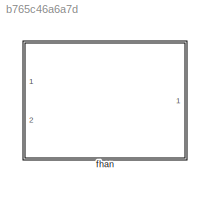
MODEL slx_b765c46a6a7d
KIND library
CONFIG AbsTol = auto
CONFIG EnableMultiTasking = off
CONFIG FixedStep = auto
CONFIG MaxStep = auto
CONFIG MinStep = auto
CONFIG RelTol = 1e-3
CONFIG SampleTimeConstraint = Unconstrained
CONFIG Solver = VariableStepAuto
CONFIG SolverName = VariableStepAuto
CONFIG StartTime = 0.0
CONFIG StopTime = 10.0
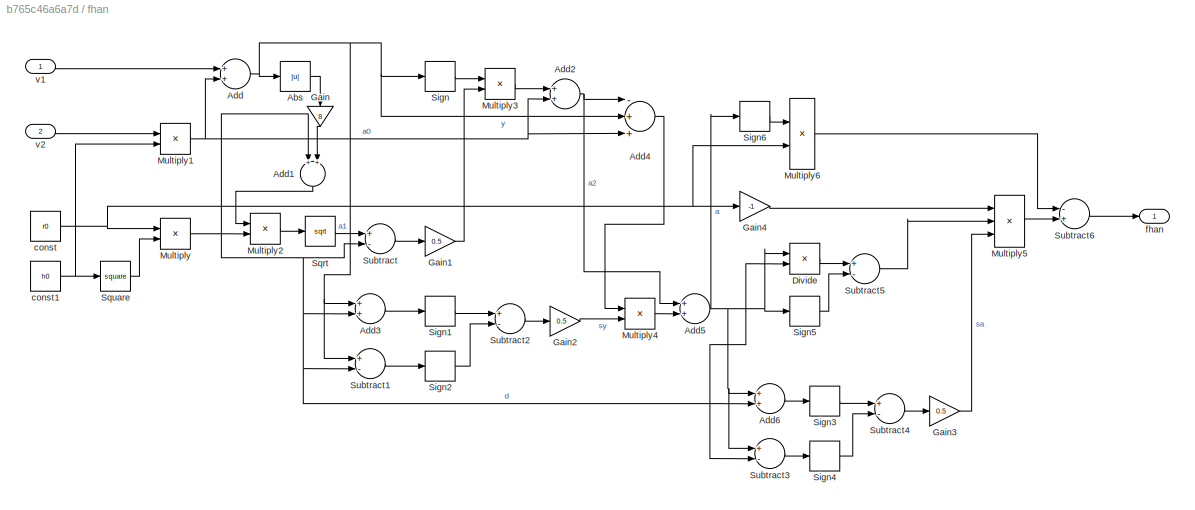
BLOCK [SubSystem] fhan
  Ports = [2, 1]
  RequestExecContextInheritance = off
BLOCK [Abs] fhan/Abs
  SaturateOnIntegerOverflow = off
BLOCK [Sum] fhan/Add
  InputSameDT = off
  Ports = [2, 1]
  SaturateOnIntegerOverflow = off
BLOCK [Sum] fhan/Add1
  InputSameDT = off
  Ports = [2, 1]
  SaturateOnIntegerOverflow = off
BLOCK [Sum] fhan/Add2
  InputSameDT = off
  Ports = [2, 1]
  SaturateOnIntegerOverflow = off
BLOCK [Sum] fhan/Add3
  InputSameDT = off
  Ports = [2, 1]
  SaturateOnIntegerOverflow = off
BLOCK [Sum] fhan/Add4
  InputSameDT = off
  Inputs = -++
  OutDataTypeStr = Inherit: Inherit via internal rule
  Ports = [3, 1]
  SaturateOnIntegerOverflow = off
BLOCK [Sum] fhan/Add5
  InputSameDT = off
  Ports = [2, 1]
  SaturateOnIntegerOverflow = off
BLOCK [Sum] fhan/Add6
  InputSameDT = off
  Ports = [2, 1]
  SaturateOnIntegerOverflow = off
BLOCK [Product] fhan/Divide
  InputSameDT = off
  Inputs = */
  OutDataTypeStr = Inherit: Inherit via internal rule
  Ports = [2, 1]
  RndMeth = Floor
  SaturateOnIntegerOverflow = off
BLOCK [Gain] fhan/Gain
  Gain = 8
  OutDataTypeStr = Inherit: Inherit via internal rule
  ParamDataTypeStr = Inherit: Inherit via internal rule
  SaturateOnIntegerOverflow = off
BLOCK [Gain] fhan/Gain1
  Gain = 0.5
  ParamDataTypeStr = Inherit: Inherit via internal rule
  SaturateOnIntegerOverflow = off
BLOCK [Gain] fhan/Gain2
  Gain = 0.5
  ParamDataTypeStr = Inherit: Inherit via internal rule
  SaturateOnIntegerOverflow = off
BLOCK [Gain] fhan/Gain3
  Gain = 0.5
  ParamDataTypeStr = Inherit: Inherit via internal rule
  SaturateOnIntegerOverflow = off
BLOCK [Gain] fhan/Gain4
  Gain = -1
  ParamDataTypeStr = Inherit: Inherit via internal rule
  SaturateOnIntegerOverflow = off
BLOCK [Product] fhan/Multiply
  InputSameDT = off
  Ports = [2, 1]
  RndMeth = Floor
  SaturateOnIntegerOverflow = off
BLOCK [Product] fhan/Multiply1
  InputSameDT = off
  Ports = [2, 1]
  RndMeth = Floor
  SaturateOnIntegerOverflow = off
BLOCK [Product] fhan/Multiply2
  InputSameDT = off
  Ports = [2, 1]
  RndMeth = Floor
  SaturateOnIntegerOverflow = off
BLOCK [Product] fhan/Multiply3
  InputSameDT = off
  Ports = [2, 1]
  RndMeth = Floor
  SaturateOnIntegerOverflow = off
BLOCK [Product] fhan/Multiply4
  InputSameDT = off
  OutDataTypeStr = single
  Ports = [2, 1]
  RndMeth = Floor
  SaturateOnIntegerOverflow = off
BLOCK [Product] fhan/Multiply5
  InputSameDT = off
  Inputs = 3
  OutDataTypeStr = Inherit: Inherit via internal rule
  Ports = [3, 1]
  RndMeth = Floor
  SaturateOnIntegerOverflow = off
BLOCK [Product] fhan/Multiply6
  InputSameDT = off
  OutDataTypeStr = single
  Ports = [2, 1]
  RndMeth = Floor
  SaturateOnIntegerOverflow = off
BLOCK [Signum] fhan/Sign
BLOCK [Signum] fhan/Sign1
BLOCK [Signum] fhan/Sign2
BLOCK [Signum] fhan/Sign3
BLOCK [Signum] fhan/Sign4
BLOCK [Signum] fhan/Sign5
BLOCK [Signum] fhan/Sign6
BLOCK [Sqrt] fhan/Sqrt
BLOCK [Math] fhan/Square
  Operator = square
  Ports = [1, 1]
BLOCK [Sum] fhan/Subtract
  InputSameDT = off
  Inputs = +-
  Ports = [2, 1]
  SaturateOnIntegerOverflow = off
BLOCK [Sum] fhan/Subtract1
  InputSameDT = off
  Inputs = +-
  Ports = [2, 1]
  SaturateOnIntegerOverflow = off
BLOCK [Sum] fhan/Subtract2
  InputSameDT = off
  Inputs = +-
  Ports = [2, 1]
  SaturateOnIntegerOverflow = off
BLOCK [Sum] fhan/Subtract3
  InputSameDT = off
  Inputs = +-
  Ports = [2, 1]
  SaturateOnIntegerOverflow = off
BLOCK [Sum] fhan/Subtract4
  InputSameDT = off
  Inputs = +-
  Ports = [2, 1]
  SaturateOnIntegerOverflow = off
BLOCK [Sum] fhan/Subtract5
  InputSameDT = off
  Inputs = +-
  Ports = [2, 1]
  SaturateOnIntegerOverflow = off
BLOCK [Sum] fhan/Subtract6
  InputSameDT = off
  Inputs = -+
  Ports = [2, 1]
  SaturateOnIntegerOverflow = off
BLOCK [Constant] fhan/const
  OutDataTypeStr = single
  Value = r0
BLOCK [Constant] fhan/const1
  OutDataTypeStr = single
  Value = h0
BLOCK [Outport] fhan/fhan
  IconDisplay = Port number
BLOCK [Inport] fhan/v1
  IconDisplay = Port number
BLOCK [Inport] fhan/v2
  IconDisplay = Port number
  Port = 2
LINE fhan/Abs:1 -> fhan/Gain:1
LINE fhan/Add1:1 -> fhan/Multiply2:1
NET fhan/Add2:1 -> fhan/Add4:1, fhan/Add5:1
LINE fhan/Add3:1 -> fhan/Sign1:1
LINE fhan/Add4:1 -> fhan/Multiply4:1
NET fhan/Add5:1 -> fhan/Add6:1, fhan/Divide:1, fhan/Sign5:1, fhan/Sign6:1, fhan/Subtract3:1
LINE fhan/Add6:1 -> fhan/Sign3:1
NET fhan/Add:1 -> fhan/Abs:1, fhan/Add3:1, fhan/Add4:2, fhan/Sign:1, fhan/Subtract1:1
LINE fhan/Divide:1 -> fhan/Subtract5:1
LINE fhan/Gain1:1 -> fhan/Multiply3:2
LINE fhan/Gain2:1 -> fhan/Multiply4:2
LINE fhan/Gain3:1 -> fhan/Multiply5:3
LINE fhan/Gain4:1 -> fhan/Multiply5:1
LINE fhan/Gain:1 -> fhan/Add1:2
NET fhan/Multiply1:1 -> fhan/Add2:2, fhan/Add4:3, fhan/Add:2
LINE fhan/Multiply2:1 -> fhan/Sqrt:1
LINE fhan/Multiply3:1 -> fhan/Add2:1
LINE fhan/Multiply4:1 -> fhan/Add5:2
LINE fhan/Multiply5:1 -> fhan/Subtract6:2
LINE fhan/Multiply6:1 -> fhan/Subtract6:1
NET fhan/Multiply:1 -> fhan/Add1:1, fhan/Add3:2, fhan/Add6:2, fhan/Divide:2, fhan/Multiply2:2, fhan/Subtract1:2, fhan/Subtract3:2, fhan/Subtract:2
LINE fhan/Sign1:1 -> fhan/Subtract2:1
LINE fhan/Sign2:1 -> fhan/Subtract2:2
LINE fhan/Sign3:1 -> fhan/Subtract4:1
LINE fhan/Sign4:1 -> fhan/Subtract4:2
LINE fhan/Sign5:1 -> fhan/Subtract5:2
LINE fhan/Sign6:1 -> fhan/Multiply6:1
LINE fhan/Sign:1 -> fhan/Multiply3:1
LINE fhan/Sqrt:1 -> fhan/Subtract:1
LINE fhan/Square:1 -> fhan/Multiply:2
LINE fhan/Subtract1:1 -> fhan/Sign2:1
LINE fhan/Subtract2:1 -> fhan/Gain2:1
LINE fhan/Subtract3:1 -> fhan/Sign4:1
LINE fhan/Subtract4:1 -> fhan/Gain3:1
LINE fhan/Subtract5:1 -> fhan/Multiply5:2
LINE fhan/Subtract6:1 -> fhan/fhan:1
LINE fhan/Subtract:1 -> fhan/Gain1:1
NET fhan/const1:1 -> fhan/Multiply1:2, fhan/Square:1
NET fhan/const:1 -> fhan/Gain4:1, fhan/Multiply6:2, fhan/Multiply:1
LINE fhan/v1:1 -> fhan/Add:1
LINE fhan/v2:1 -> fhan/Multiply1:1
note: NET lines group one-source signal fan-out (src -> all destinations, sorted); 1:1 wires keep LINE
